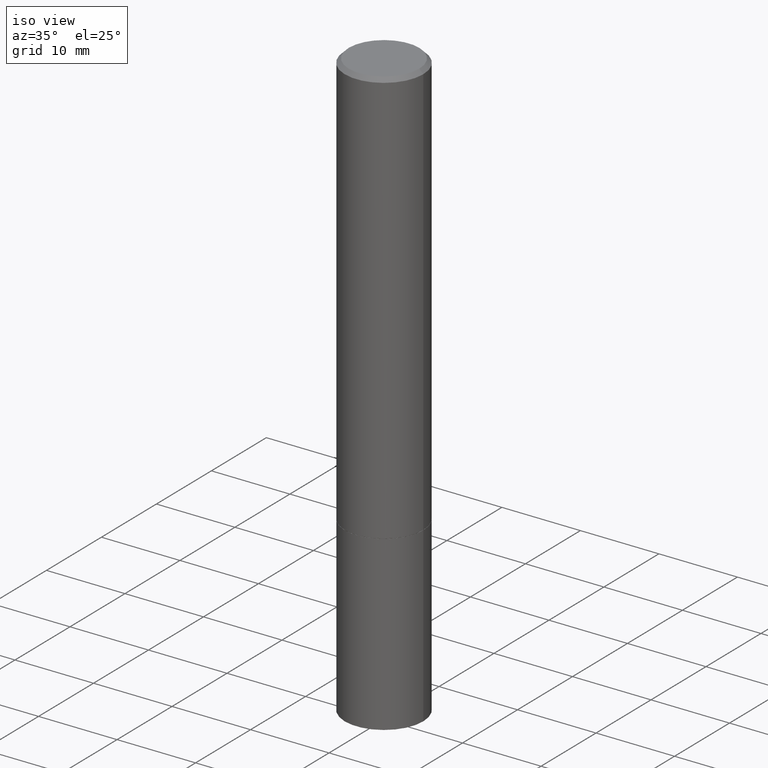
[diagram: clean part render]
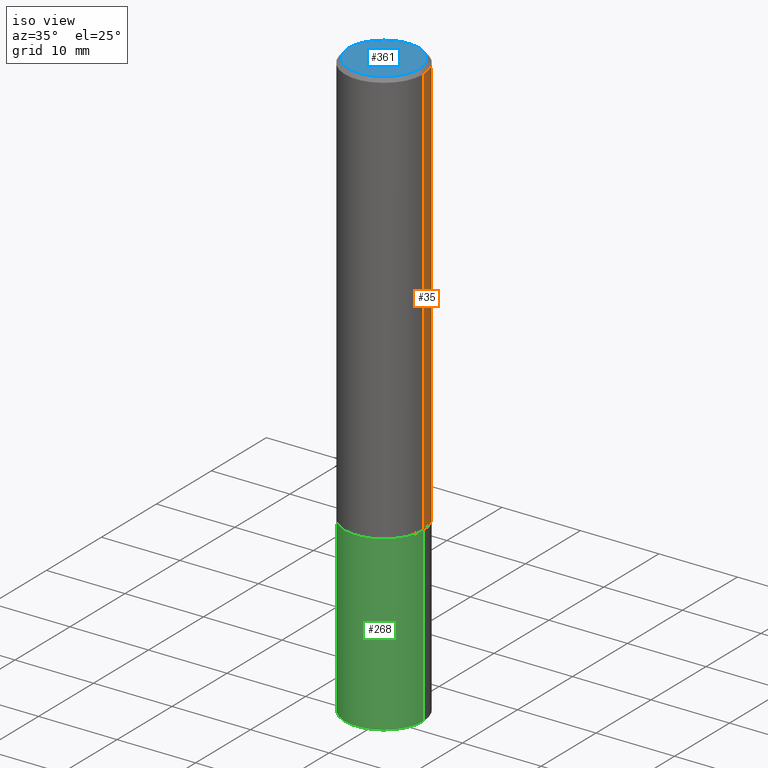
[diagram: same view with three faces highlighted in distinct colors, each labeled with its STEP entity id]
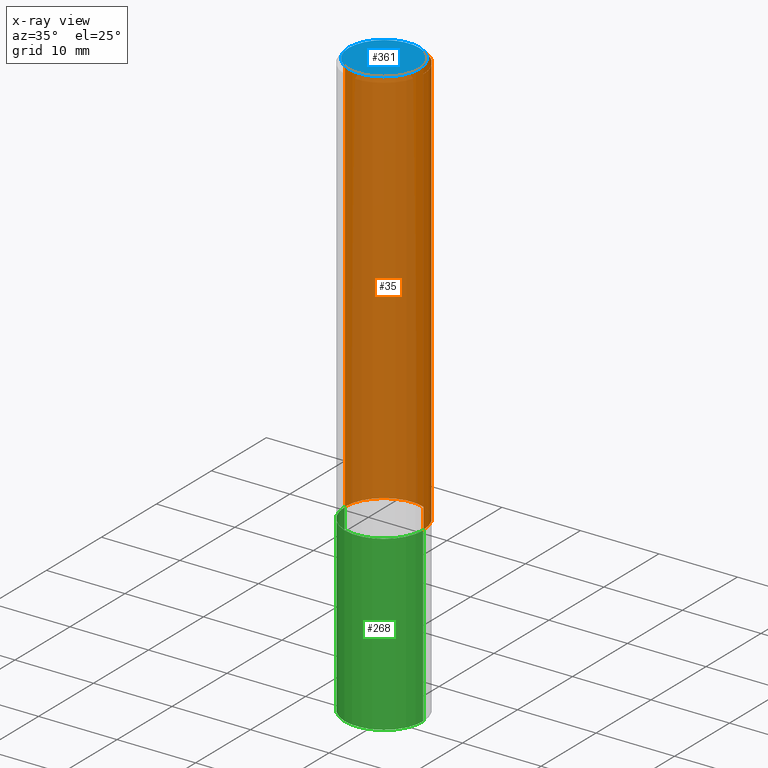
[diagram: x-ray of the same camera — body ghosted, the three highlighted faces saturated]
A machine part, iso view with three faces highlighted in distinct colors.
The next image is the same camera in x-ray (body ghosted, the three faces saturated) — at least one of them is partly hidden behind the body in this view.
Their STEP definitions:

[orange] entity #35 — the highlighted cylindrical surface (partial cylindrical patch) has radius 5 mm, axis along (-0, 0, 1).
#4 = ORIENTED_EDGE ( 'NONE', *, *, #133, .T. ) ;
#12 = CARTESIAN_POINT ( 'NONE',  ( 0.1968499999999997752, -1.420318657638187347E-15, -0.02000000000000001776 ) ) ;
#15 = LINE ( 'NONE', #220, #198 ) ;
#16 = CARTESIAN_POINT ( 'NONE',  ( -0.1968499999999999139, 1.398703375343756604E-15, -9.682923725166778072E-30 ) ) ;
#29 = VERTEX_POINT ( 'NONE', #64 ) ;
#35 = ADVANCED_FACE ( 'NONE', ( #123 ), #175, .T. ) ;
#47 = CIRCLE ( 'NONE', #109, 0.1968499999999997752 ) ;
#64 = CARTESIAN_POINT ( 'NONE',  ( 0.1968500000000000250, -8.656778831527691107E-15, -2.085699999999999665 ) ) ;
#66 = CARTESIAN_POINT ( 'NONE',  ( 5.100514289060338336E-29, -7.282182628425147921E-15, -2.085699999999999665 ) ) ;
#85 = VERTEX_POINT ( 'NONE', #291 ) ;
#109 = AXIS2_PLACEMENT_3D ( 'NONE', #208, #264, #214 ) ;
#122 = DIRECTION ( 'NONE',  ( -2.445468806185136597E-29, 3.491481338843145583E-15, 1.000000000000000000 ) ) ;
#123 = FACE_OUTER_BOUND ( 'NONE', #265, .T. ) ;
#129 = CARTESIAN_POINT ( 'NONE',  ( -0.1968500000000000250, -2.277302752257247033E-15, -2.085699999999999665 ) ) ;
#133 = EDGE_CURVE ( 'NONE', #29, #286, #212, .T. ) ;
#147 = VERTEX_POINT ( 'NONE', #12 ) ;
#149 = EDGE_CURVE ( 'NONE', #147, #85, #47, .T. ) ;
#164 = VECTOR ( 'NONE', #328, 39.37007874015748143 ) ;
#175 = CYLINDRICAL_SURFACE ( 'NONE', #257, 0.1968499999999999139 ) ;
#190 = DIRECTION ( 'NONE',  ( -2.445468806185136877E-29, 3.491481338843145188E-15, 1.000000000000000000 ) ) ;
#198 = VECTOR ( 'NONE', #190, 39.37007874015748143 ) ;
#208 = CARTESIAN_POINT ( 'NONE',  ( 4.890937612370276662E-31, -6.982962677686296539E-17, -0.02000000000000001776 ) ) ;
#212 = CIRCLE ( 'NONE', #344, 0.1968500000000000250 ) ;
#214 = DIRECTION ( 'NONE',  ( 1.000000000000000000, -6.982962677686266711E-15, 0.000000000000000000 ) ) ;
#220 = CARTESIAN_POINT ( 'NONE',  ( 0.1968499999999999139, -1.374596203102541017E-15, 9.598753983154295253E-30 ) ) ;
#248 = EDGE_CURVE ( 'NONE', #286, #85, #249, .T. ) ;
#249 = LINE ( 'NONE', #16, #164 ) ;
#256 = ORIENTED_EDGE ( 'NONE', *, *, #149, .F. ) ;
#257 = AXIS2_PLACEMENT_3D ( 'NONE', #351, #122, #266 ) ;
#264 = DIRECTION ( 'NONE',  ( -2.445468806185136597E-29, 3.491481338843145583E-15, 1.000000000000000000 ) ) ;
#265 = EDGE_LOOP ( 'NONE', ( #4, #305, #256, #343 ) ) ;
#266 = DIRECTION ( 'NONE',  ( 1.000000000000000000, -6.982962677686266711E-15, 4.876176775795935793E-29 ) ) ;
#286 = VERTEX_POINT ( 'NONE', #129 ) ;
#291 = CARTESIAN_POINT ( 'NONE',  ( -0.1968499999999997752, 1.304766576325677127E-15, -0.02000000000000001776 ) ) ;
#294 = DIRECTION ( 'NONE',  ( -2.445468806185136597E-29, 3.491481338843145583E-15, 1.000000000000000000 ) ) ;
#304 = EDGE_CURVE ( 'NONE', #29, #147, #15, .T. ) ;
#305 = ORIENTED_EDGE ( 'NONE', *, *, #248, .T. ) ;
#328 = DIRECTION ( 'NONE',  ( -2.445468806185136877E-29, 3.491481338843145188E-15, 1.000000000000000000 ) ) ;
#343 = ORIENTED_EDGE ( 'NONE', *, *, #304, .F. ) ;
#344 = AXIS2_PLACEMENT_3D ( 'NONE', #66, #294, #353 ) ;
#351 = CARTESIAN_POINT ( 'NONE',  ( 0.000000000000000000, 0.000000000000000000, 0.000000000000000000 ) ) ;
#353 = DIRECTION ( 'NONE',  ( 1.000000000000000000, -6.982962677686267499E-15, 0.000000000000000000 ) ) ;

[blue] entity #361 — the highlighted planar face has unit normal (0, -0, -1).
#17 = AXIS2_PLACEMENT_3D ( 'NONE', #21, #128, #244 ) ;
#21 = CARTESIAN_POINT ( 'NONE',  ( 1.234936949548814617E-15, 0.1768499999999997851, -6.153342185293593634E-16 ) ) ;
#36 = CIRCLE ( 'NONE', #345, 0.1768499999999997851 ) ;
#54 = VERTEX_POINT ( 'NONE', #176 ) ;
#55 = EDGE_LOOP ( 'NONE', ( #213, #200 ) ) ;
#74 = CARTESIAN_POINT ( 'NONE',  ( -1.043851414335219820E-46, 1.490343170380447200E-32, 4.268512490100411279E-18 ) ) ;
#89 = CIRCLE ( 'NONE', #252, 0.1768499999999997851 ) ;
#113 = EDGE_CURVE ( 'NONE', #319, #54, #89, .T. ) ;
#128 = DIRECTION ( 'NONE',  ( 2.438088387897960049E-29, -3.491481338843145188E-15, -1.000000000000000000 ) ) ;
#143 = DIRECTION ( 'NONE',  ( 1.000000000000000000, -6.982962677686266711E-15, 4.875932113059884174E-29 ) ) ;
#156 = PLANE ( 'NONE',  #17 ) ;
#160 = CARTESIAN_POINT ( 'NONE',  ( 0.1768499999999997851, -1.316798864272040563E-15, 4.268512490109333727E-18 ) ) ;
#176 = CARTESIAN_POINT ( 'NONE',  ( -0.1768499999999997851, 1.269851762937246069E-15, 4.268512490091652920E-18 ) ) ;
#187 = DIRECTION ( 'NONE',  ( 1.000000000000000000, -6.982962677686266711E-15, 4.875932113059884174E-29 ) ) ;
#200 = ORIENTED_EDGE ( 'NONE', *, *, #113, .T. ) ;
#209 = DIRECTION ( 'NONE',  ( -2.445468806185136597E-29, 3.491481338843145583E-15, 1.000000000000000000 ) ) ;
#213 = ORIENTED_EDGE ( 'NONE', *, *, #279, .T. ) ;
#241 = CARTESIAN_POINT ( 'NONE',  ( -1.043851414335219820E-46, 1.490343170380447200E-32, 4.268512490100411279E-18 ) ) ;
#244 = DIRECTION ( 'NONE',  ( -1.000000000000000000, 6.982962677686265922E-15, -4.876176775795935793E-29 ) ) ;
#252 = AXIS2_PLACEMENT_3D ( 'NONE', #241, #209, #143 ) ;
#279 = EDGE_CURVE ( 'NONE', #54, #319, #36, .T. ) ;
#280 = DIRECTION ( 'NONE',  ( -2.445468806185136597E-29, 3.491481338843145583E-15, 1.000000000000000000 ) ) ;
#319 = VERTEX_POINT ( 'NONE', #160 ) ;
#332 = FACE_OUTER_BOUND ( 'NONE', #55, .T. ) ;
#345 = AXIS2_PLACEMENT_3D ( 'NONE', #74, #280, #187 ) ;
#361 = ADVANCED_FACE ( 'NONE', ( #332 ), #156, .F. ) ;

[green] entity #268 — the highlighted cylindrical surface (partial cylindrical patch) has radius 5 mm, axis along (-0, 0, 1).
#1 = VERTEX_POINT ( 'NONE', #18 ) ;
#5 = VECTOR ( 'NONE', #69, 39.37007874015748143 ) ;
#18 = CARTESIAN_POINT ( 'NONE',  ( 0.1968500000000000250, -8.660270312866532536E-15, -2.086699999999999999 ) ) ;
#28 = EDGE_CURVE ( 'NONE', #181, #1, #52, .T. ) ;
#41 = CARTESIAN_POINT ( 'NONE',  ( 5.102959757866523939E-29, -7.285674109763990928E-15, -2.086699999999999999 ) ) ;
#43 = CARTESIAN_POINT ( 'NONE',  ( -0.1968500000000000250, -7.398956728206258518E-15, -2.952799999999999869 ) ) ;
#45 = CARTESIAN_POINT ( 'NONE',  ( 0.000000000000000000, 0.000000000000000000, 0.000000000000000000 ) ) ;
#48 = DIRECTION ( 'NONE',  ( -2.445468806185136877E-29, 3.491481338843145188E-15, 1.000000000000000000 ) ) ;
#49 = CARTESIAN_POINT ( 'NONE',  ( 7.220980290903470182E-29, -1.030964609733603853E-14, -2.952799999999999869 ) ) ;
#52 = CIRCLE ( 'NONE', #67, 0.1968500000000000250 ) ;
#67 = AXIS2_PLACEMENT_3D ( 'NONE', #41, #269, #346 ) ;
#69 = DIRECTION ( 'NONE',  ( -2.445468806185136877E-29, 3.491481338843145188E-15, 1.000000000000000000 ) ) ;
#73 = AXIS2_PLACEMENT_3D ( 'NONE', #49, #162, #278 ) ;
#96 = CIRCLE ( 'NONE', #73, 0.1968500000000000250 ) ;
#110 = FACE_OUTER_BOUND ( 'NONE', #178, .T. ) ;
#158 = DIRECTION ( 'NONE',  ( -2.445468806185136597E-29, 3.491481338843145583E-15, 1.000000000000000000 ) ) ;
#162 = DIRECTION ( 'NONE',  ( -2.445468806185136597E-29, 3.491481338843145583E-15, 1.000000000000000000 ) ) ;
#172 = ORIENTED_EDGE ( 'NONE', *, *, #179, .F. ) ;
#178 = EDGE_LOOP ( 'NONE', ( #172, #202, #296, #334 ) ) ;
#179 = EDGE_CURVE ( 'NONE', #188, #181, #321, .T. ) ;
#181 = VERTEX_POINT ( 'NONE', #300 ) ;
#188 = VERTEX_POINT ( 'NONE', #43 ) ;
#193 = LINE ( 'NONE', #250, #310 ) ;
#202 = ORIENTED_EDGE ( 'NONE', *, *, #341, .T. ) ;
#232 = VERTEX_POINT ( 'NONE', #245 ) ;
#245 = CARTESIAN_POINT ( 'NONE',  ( 0.1968500000000000250, -1.168424230043858014E-14, -2.952799999999999869 ) ) ;
#250 = CARTESIAN_POINT ( 'NONE',  ( 0.1968500000000000250, -1.374596203102541608E-15, 9.598753983154300858E-30 ) ) ;
#268 = ADVANCED_FACE ( 'NONE', ( #110 ), #306, .T. ) ;
#269 = DIRECTION ( 'NONE',  ( -2.445468806185136597E-29, 3.491481338843145583E-15, 1.000000000000000000 ) ) ;
#278 = DIRECTION ( 'NONE',  ( 1.000000000000000000, -6.982962677686267499E-15, 0.000000000000000000 ) ) ;
#293 = AXIS2_PLACEMENT_3D ( 'NONE', #45, #158, #357 ) ;
#296 = ORIENTED_EDGE ( 'NONE', *, *, #365, .T. ) ;
#300 = CARTESIAN_POINT ( 'NONE',  ( -0.1968500000000000250, -7.398956728206258518E-15, -2.086699999999999999 ) ) ;
#306 = CYLINDRICAL_SURFACE ( 'NONE', #293, 0.1968500000000000250 ) ;
#310 = VECTOR ( 'NONE', #48, 39.37007874015748143 ) ;
#321 = LINE ( 'NONE', #324, #5 ) ;
#324 = CARTESIAN_POINT ( 'NONE',  ( -0.1968500000000000250, 1.398703375343757393E-15, -9.682923725166783677E-30 ) ) ;
#334 = ORIENTED_EDGE ( 'NONE', *, *, #28, .F. ) ;
#341 = EDGE_CURVE ( 'NONE', #188, #232, #96, .T. ) ;
#346 = DIRECTION ( 'NONE',  ( 1.000000000000000000, -6.982962677686267499E-15, 0.000000000000000000 ) ) ;
#357 = DIRECTION ( 'NONE',  ( 1.000000000000000000, -6.982962677686265922E-15, 4.876176775795935793E-29 ) ) ;
#365 = EDGE_CURVE ( 'NONE', #232, #1, #193, .T. ) ;